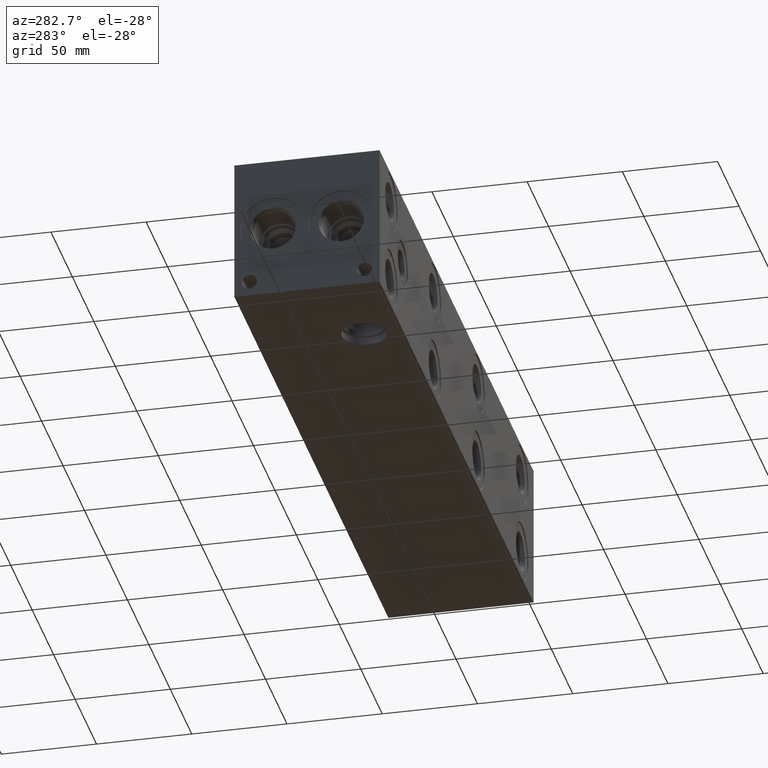
[diagram: clean part render]
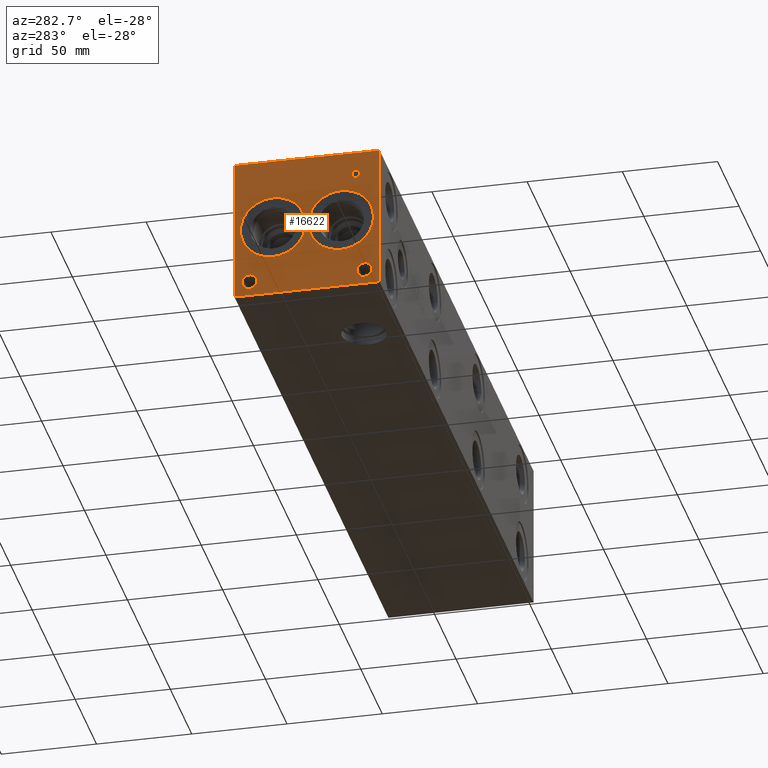
[diagram: same view with one face highlighted and labeled with its STEP entity id]
A machine part, auxiliary view. The second image highlights one B-rep face of the part: STEP entity #16622.
In plain terms, the highlighted planar face has unit normal (-1, 0, 0).
Its self-contained STEP definition (entity closure, byte-faithful):
#286=CIRCLE('',#17361,17.0688);
#287=CIRCLE('',#17362,17.0688);
#288=CIRCLE('',#17363,17.0688);
#289=CIRCLE('',#17364,17.0688);
#290=CIRCLE('',#17365,3.9624);
#291=CIRCLE('',#17366,3.9624);
#292=CIRCLE('',#17367,3.9624);
#293=CIRCLE('',#17368,3.9624);
#853=FACE_BOUND('',#3035,.T.);
#854=FACE_BOUND('',#3036,.T.);
#855=FACE_BOUND('',#3037,.T.);
#856=FACE_BOUND('',#3038,.T.);
#857=FACE_BOUND('',#3039,.T.);
#858=FACE_BOUND('',#3040,.T.);
#1309=B_SPLINE_CURVE_WITH_KNOTS('',2,(#27582,#27583,#27584,#27585),
 .UNSPECIFIED.,.F.,.F.,(3,1,3),(0.,1.,2.),.UNSPECIFIED.);
#1311=B_SPLINE_CURVE_WITH_KNOTS('',2,(#27603,#27604,#27605,#27606),
 .UNSPECIFIED.,.F.,.F.,(3,1,3),(0.,1.,2.),.UNSPECIFIED.);
#1313=B_SPLINE_CURVE_WITH_KNOTS('',2,(#27652,#27653,#27654,#27655),
 .UNSPECIFIED.,.F.,.F.,(3,1,3),(0.,1.,2.),.UNSPECIFIED.);
#1315=B_SPLINE_CURVE_WITH_KNOTS('',2,(#27670,#27671,#27672,#27673),
 .UNSPECIFIED.,.F.,.F.,(3,1,3),(0.,1.,2.),.UNSPECIFIED.);
#2082=FACE_OUTER_BOUND('',#3034,.T.);
#3034=EDGE_LOOP('',(#13425,#13426,#13427,#13428));
#3035=EDGE_LOOP('',(#13429,#13430));
#3036=EDGE_LOOP('',(#13431,#13432));
#3037=EDGE_LOOP('',(#13433,#13434));
#3038=EDGE_LOOP('',(#13435,#13436));
#3039=EDGE_LOOP('',(#13437,#13438,#13439,#13440,#13441,#13442,#13443,#13444));
#3040=EDGE_LOOP('',(#13445,#13446,#13447,#13448,#13449,#13450,#13451,#13452,
#13453));
#3775=LINE('',#24297,#5226);
#4604=LINE('',#27615,#6055);
#4607=LINE('',#27621,#6058);
#4610=LINE('',#27627,#6061);
#4613=LINE('',#27633,#6064);
#4616=LINE('',#27639,#6067);
#4620=LINE('',#27681,#6071);
#4621=LINE('',#27683,#6072);
#4622=LINE('',#27684,#6073);
#4623=LINE('',#27703,#6074);
#4624=LINE('',#27705,#6075);
#4625=LINE('',#27707,#6076);
#4626=LINE('',#27709,#6077);
#4627=LINE('',#27711,#6078);
#4628=LINE('',#27713,#6079);
#4629=LINE('',#27715,#6080);
#4630=LINE('',#27716,#6081);
#5226=VECTOR('',#18691,10.);
#6055=VECTOR('',#20148,10.);
#6058=VECTOR('',#20153,10.);
#6061=VECTOR('',#20158,10.);
#6064=VECTOR('',#20163,10.);
#6067=VECTOR('',#20168,10.);
#6071=VECTOR('',#20176,10.);
#6072=VECTOR('',#20177,10.);
#6073=VECTOR('',#20178,10.);
#6074=VECTOR('',#20195,10.);
#6075=VECTOR('',#20196,10.);
#6076=VECTOR('',#20197,10.);
#6077=VECTOR('',#20198,10.);
#6078=VECTOR('',#20199,10.);
#6079=VECTOR('',#20200,10.);
#6080=VECTOR('',#20201,10.);
#6081=VECTOR('',#20202,10.);
#6685=VERTEX_POINT('',#24290);
#6688=VERTEX_POINT('',#24295);
#7385=VERTEX_POINT('',#27580);
#7386=VERTEX_POINT('',#27581);
#7389=VERTEX_POINT('',#27602);
#7391=VERTEX_POINT('',#27614);
#7393=VERTEX_POINT('',#27620);
#7395=VERTEX_POINT('',#27626);
#7397=VERTEX_POINT('',#27632);
#7399=VERTEX_POINT('',#27638);
#7401=VERTEX_POINT('',#27651);
#7403=VERTEX_POINT('',#27680);
#7404=VERTEX_POINT('',#27682);
#7405=VERTEX_POINT('',#27685);
#7406=VERTEX_POINT('',#27686);
#7407=VERTEX_POINT('',#27689);
#7408=VERTEX_POINT('',#27690);
#7409=VERTEX_POINT('',#27693);
#7410=VERTEX_POINT('',#27694);
#7411=VERTEX_POINT('',#27697);
#7412=VERTEX_POINT('',#27698);
#7413=VERTEX_POINT('',#27701);
#7414=VERTEX_POINT('',#27702);
#7415=VERTEX_POINT('',#27704);
#7416=VERTEX_POINT('',#27706);
#7417=VERTEX_POINT('',#27708);
#7418=VERTEX_POINT('',#27710);
#7419=VERTEX_POINT('',#27712);
#7420=VERTEX_POINT('',#27714);
#8494=EDGE_CURVE('',#6685,#6688,#3775,.T.);
#9526=EDGE_CURVE('',#7385,#7386,#1309,.T.);
#9530=EDGE_CURVE('',#7389,#7385,#1311,.T.);
#9533=EDGE_CURVE('',#7391,#7389,#4604,.T.);
#9536=EDGE_CURVE('',#7393,#7391,#4607,.T.);
#9539=EDGE_CURVE('',#7395,#7393,#4610,.T.);
#9542=EDGE_CURVE('',#7397,#7395,#4613,.T.);
#9545=EDGE_CURVE('',#7399,#7397,#4616,.T.);
#9548=EDGE_CURVE('',#7401,#7399,#1313,.T.);
#9551=EDGE_CURVE('',#7386,#7401,#1315,.T.);
#9553=EDGE_CURVE('',#7403,#6685,#4620,.T.);
#9554=EDGE_CURVE('',#7404,#6688,#4621,.T.);
#9555=EDGE_CURVE('',#7403,#7404,#4622,.T.);
#9556=EDGE_CURVE('',#7405,#7406,#286,.T.);
#9557=EDGE_CURVE('',#7406,#7405,#287,.T.);
#9558=EDGE_CURVE('',#7407,#7408,#288,.T.);
#9559=EDGE_CURVE('',#7408,#7407,#289,.T.);
#9560=EDGE_CURVE('',#7409,#7410,#290,.T.);
#9561=EDGE_CURVE('',#7410,#7409,#291,.T.);
#9562=EDGE_CURVE('',#7411,#7412,#292,.T.);
#9563=EDGE_CURVE('',#7412,#7411,#293,.T.);
#9564=EDGE_CURVE('',#7413,#7414,#4623,.T.);
#9565=EDGE_CURVE('',#7414,#7415,#4624,.T.);
#9566=EDGE_CURVE('',#7415,#7416,#4625,.T.);
#9567=EDGE_CURVE('',#7416,#7417,#4626,.T.);
#9568=EDGE_CURVE('',#7417,#7418,#4627,.T.);
#9569=EDGE_CURVE('',#7418,#7419,#4628,.T.);
#9570=EDGE_CURVE('',#7419,#7420,#4629,.T.);
#9571=EDGE_CURVE('',#7420,#7413,#4630,.T.);
#13425=ORIENTED_EDGE('',*,*,#9553,.T.);
#13426=ORIENTED_EDGE('',*,*,#8494,.T.);
#13427=ORIENTED_EDGE('',*,*,#9554,.F.);
#13428=ORIENTED_EDGE('',*,*,#9555,.F.);
#13429=ORIENTED_EDGE('',*,*,#9556,.T.);
#13430=ORIENTED_EDGE('',*,*,#9557,.T.);
#13431=ORIENTED_EDGE('',*,*,#9558,.T.);
#13432=ORIENTED_EDGE('',*,*,#9559,.T.);
#13433=ORIENTED_EDGE('',*,*,#9560,.T.);
#13434=ORIENTED_EDGE('',*,*,#9561,.T.);
#13435=ORIENTED_EDGE('',*,*,#9562,.T.);
#13436=ORIENTED_EDGE('',*,*,#9563,.T.);
#13437=ORIENTED_EDGE('',*,*,#9564,.T.);
#13438=ORIENTED_EDGE('',*,*,#9565,.T.);
#13439=ORIENTED_EDGE('',*,*,#9566,.T.);
#13440=ORIENTED_EDGE('',*,*,#9567,.T.);
#13441=ORIENTED_EDGE('',*,*,#9568,.T.);
#13442=ORIENTED_EDGE('',*,*,#9569,.T.);
#13443=ORIENTED_EDGE('',*,*,#9570,.T.);
#13444=ORIENTED_EDGE('',*,*,#9571,.T.);
#13445=ORIENTED_EDGE('',*,*,#9526,.T.);
#13446=ORIENTED_EDGE('',*,*,#9551,.T.);
#13447=ORIENTED_EDGE('',*,*,#9548,.T.);
#13448=ORIENTED_EDGE('',*,*,#9545,.T.);
#13449=ORIENTED_EDGE('',*,*,#9542,.T.);
#13450=ORIENTED_EDGE('',*,*,#9539,.T.);
#13451=ORIENTED_EDGE('',*,*,#9536,.T.);
#13452=ORIENTED_EDGE('',*,*,#9533,.T.);
#13453=ORIENTED_EDGE('',*,*,#9530,.T.);
#15428=PLANE('',#17360);
#16622=ADVANCED_FACE('',(#2082,#853,#854,#855,#856,#857,#858),#15428,.T.);
#17360=AXIS2_PLACEMENT_3D('',#27679,#20174,#20175);
#17361=AXIS2_PLACEMENT_3D('',#27687,#20179,#20180);
#17362=AXIS2_PLACEMENT_3D('',#27688,#20181,#20182);
#17363=AXIS2_PLACEMENT_3D('',#27691,#20183,#20184);
#17364=AXIS2_PLACEMENT_3D('',#27692,#20185,#20186);
#17365=AXIS2_PLACEMENT_3D('',#27695,#20187,#20188);
#17366=AXIS2_PLACEMENT_3D('',#27696,#20189,#20190);
#17367=AXIS2_PLACEMENT_3D('',#27699,#20191,#20192);
#17368=AXIS2_PLACEMENT_3D('',#27700,#20193,#20194);
#18691=DIRECTION('',(0.,0.,1.));
#20148=DIRECTION('',(0.,-1.,-1.11355060845355E-14));
#20153=DIRECTION('',(0.,-3.14708893596576E-15,1.));
#20158=DIRECTION('',(0.,1.,1.0524411238433E-14));
#20163=DIRECTION('',(0.,3.75218139804999E-15,-1.));
#20168=DIRECTION('',(0.,1.,1.24172909575755E-14));
#20174=DIRECTION('center_axis',(-1.,0.,0.));
#20175=DIRECTION('ref_axis',(0.,-1.,0.));
#20176=DIRECTION('',(0.,-1.,0.));
#20177=DIRECTION('',(0.,-1.,0.));
#20178=DIRECTION('',(0.,0.,1.));
#20179=DIRECTION('center_axis',(1.,0.,0.));
#20180=DIRECTION('ref_axis',(0.,0.,1.));
#20181=DIRECTION('center_axis',(1.,0.,0.));
#20182=DIRECTION('ref_axis',(0.,0.,1.));
#20183=DIRECTION('center_axis',(1.,0.,0.));
#20184=DIRECTION('ref_axis',(0.,1.,0.));
#20185=DIRECTION('center_axis',(1.,0.,0.));
#20186=DIRECTION('ref_axis',(0.,1.,0.));
#20187=DIRECTION('center_axis',(1.,0.,0.));
#20188=DIRECTION('ref_axis',(0.,1.,0.));
#20189=DIRECTION('center_axis',(1.,0.,0.));
#20190=DIRECTION('ref_axis',(0.,1.,0.));
#20191=DIRECTION('center_axis',(1.,0.,0.));
#20192=DIRECTION('ref_axis',(0.,1.,0.));
#20193=DIRECTION('center_axis',(1.,0.,0.));
#20194=DIRECTION('ref_axis',(0.,1.,0.));
#20195=DIRECTION('',(0.,1.,0.));
#20196=DIRECTION('',(0.,-3.17280044688052E-15,1.));
#20197=DIRECTION('',(0.,1.,0.));
#20198=DIRECTION('',(0.,0.,1.));
#20199=DIRECTION('',(0.,-1.,-3.47984565141734E-15));
#20200=DIRECTION('',(0.,0.,-1.));
#20201=DIRECTION('',(0.,1.,8.33818088455555E-15));
#20202=DIRECTION('',(0.,3.17280044688052E-15,-1.));
#24290=CARTESIAN_POINT('',(0.,0.,0.));
#24295=CARTESIAN_POINT('',(0.,0.,76.2));
#24297=CARTESIAN_POINT('',(0.,0.,0.));
#27580=CARTESIAN_POINT('',(0.,11.1806827976406,65.4850181439707));
#27581=CARTESIAN_POINT('',(0.,10.424240345468,63.966987372604));
#27582=CARTESIAN_POINT('Ctrl Pts',(0.,11.1806827976406,65.4850181439707));
#27583=CARTESIAN_POINT('Ctrl Pts',(0.,10.8256179731514,65.2431623939564));
#27584=CARTESIAN_POINT('Ctrl Pts',(0.,10.424240345468,64.4970116758269));
#27585=CARTESIAN_POINT('Ctrl Pts',(0.,10.424240345468,63.966987372604));
#27602=CARTESIAN_POINT('',(0.,12.8427978456117,65.8812499046326));
#27603=CARTESIAN_POINT('Ctrl Pts',(0.,12.8427978456117,65.8812499046326));
#27604=CARTESIAN_POINT('Ctrl Pts',(0.,12.2767524732376,65.8812499046326));
#27605=CARTESIAN_POINT('Ctrl Pts',(0.,11.4842889519139,65.6959986918556));
#27606=CARTESIAN_POINT('Ctrl Pts',(0.,11.1806827976406,65.4850181439707));
#27614=CARTESIAN_POINT('',(0.,14.4380166223022,65.8812499046326));
#27615=CARTESIAN_POINT('',(0.,45.3190083111507,65.8812499046329));
#27620=CARTESIAN_POINT('',(0.,14.4380166223022,59.53125));
#27621=CARTESIAN_POINT('',(0.,14.4380166223023,29.7656249999999));
#27626=CARTESIAN_POINT('',(0.,13.5940944307627,59.53125));
#27627=CARTESIAN_POINT('',(0.,44.897047215381,59.5312500000003));
#27632=CARTESIAN_POINT('',(0.,13.5940944307627,61.8983488299279));
#27633=CARTESIAN_POINT('',(0.,13.5940944307628,30.9491744149638));
#27638=CARTESIAN_POINT('',(0.,12.8788189147628,61.8983488299279));
#27639=CARTESIAN_POINT('',(0.,44.539409457381,61.8983488299283));
#27651=CARTESIAN_POINT('',(0.,10.9799939837989,62.5570198086904));
#27652=CARTESIAN_POINT('Ctrl Pts',(0.,10.9799939837989,62.5570198086904));
#27653=CARTESIAN_POINT('Ctrl Pts',(0.,11.3093294731802,62.2328301863307));
#27654=CARTESIAN_POINT('Ctrl Pts',(0.,12.1995644679139,61.8983488299279));
#27655=CARTESIAN_POINT('Ctrl Pts',(0.,12.8788189147628,61.8983488299279));
#27670=CARTESIAN_POINT('Ctrl Pts',(0.,10.424240345468,63.966987372604));
#27671=CARTESIAN_POINT('Ctrl Pts',(0.,10.424240345468,63.5553180108774));
#27672=CARTESIAN_POINT('Ctrl Pts',(0.,10.7175547656982,62.8143131597695));
#27673=CARTESIAN_POINT('Ctrl Pts',(0.,10.9799939837989,62.5570198086904));
#27679=CARTESIAN_POINT('Origin',(0.,76.2,0.));
#27680=CARTESIAN_POINT('',(0.,76.2,0.));
#27681=CARTESIAN_POINT('',(0.,76.2,0.));
#27682=CARTESIAN_POINT('',(0.,76.2,76.2));
#27683=CARTESIAN_POINT('',(0.,76.2,76.2));
#27684=CARTESIAN_POINT('',(0.,76.2,0.));
#27685=CARTESIAN_POINT('',(0.,55.9562,55.1688));
#27686=CARTESIAN_POINT('',(0.,55.9562,21.0312));
#27687=CARTESIAN_POINT('Origin',(0.,55.9562,38.1));
#27688=CARTESIAN_POINT('Origin',(0.,55.9562,38.1));
#27689=CARTESIAN_POINT('',(0.,37.3126,38.1));
#27690=CARTESIAN_POINT('',(0.,3.175,38.1));
#27691=CARTESIAN_POINT('Origin',(0.,20.2438,38.1));
#27692=CARTESIAN_POINT('Origin',(0.,20.2438,38.1));
#27693=CARTESIAN_POINT('',(0.,11.8872,7.92480000000001));
#27694=CARTESIAN_POINT('',(0.,3.9624,7.92480000000001));
#27695=CARTESIAN_POINT('Origin',(0.,7.9248,7.92480000000001));
#27696=CARTESIAN_POINT('Origin',(0.,7.9248,7.92480000000001));
#27697=CARTESIAN_POINT('',(0.,72.2376,7.92480000000001));
#27698=CARTESIAN_POINT('',(0.,64.3128,7.92480000000001));
#27699=CARTESIAN_POINT('Origin',(0.,68.2752,7.92480000000001));
#27700=CARTESIAN_POINT('Origin',(0.,68.2752,7.92480000000001));
#27701=CARTESIAN_POINT('',(0.,66.880834728547,59.53125));
#27702=CARTESIAN_POINT('',(0.,67.7247569200865,59.53125));
#27703=CARTESIAN_POINT('',(0.,71.5404173642735,59.53125));
#27704=CARTESIAN_POINT('',(0.,67.7247569200865,65.1299533194816));
#27705=CARTESIAN_POINT('',(0.,67.7247569200866,29.765625));
#27706=CARTESIAN_POINT('',(0.,69.8551458670215,65.1299533194816));
#27707=CARTESIAN_POINT('',(0.,71.9623784600432,65.1299533194816));
#27708=CARTESIAN_POINT('',(0.,69.8551458670215,65.8812499046326));
#27709=CARTESIAN_POINT('',(0.,69.8551458670215,32.5649766597408));
#27710=CARTESIAN_POINT('',(0.,64.7504457816119,65.8812499046326));
#27711=CARTESIAN_POINT('',(0.,73.0275729335107,65.8812499046326));
#27712=CARTESIAN_POINT('',(0.,64.7504457816119,65.1299533194815));
#27713=CARTESIAN_POINT('',(0.,64.7504457816119,32.9406249523163));
#27714=CARTESIAN_POINT('',(0.,66.880834728547,65.1299533194816));
#27715=CARTESIAN_POINT('',(0.,70.4752228908057,65.1299533194816));
#27716=CARTESIAN_POINT('',(0.,66.8808347285471,32.5649766597408));